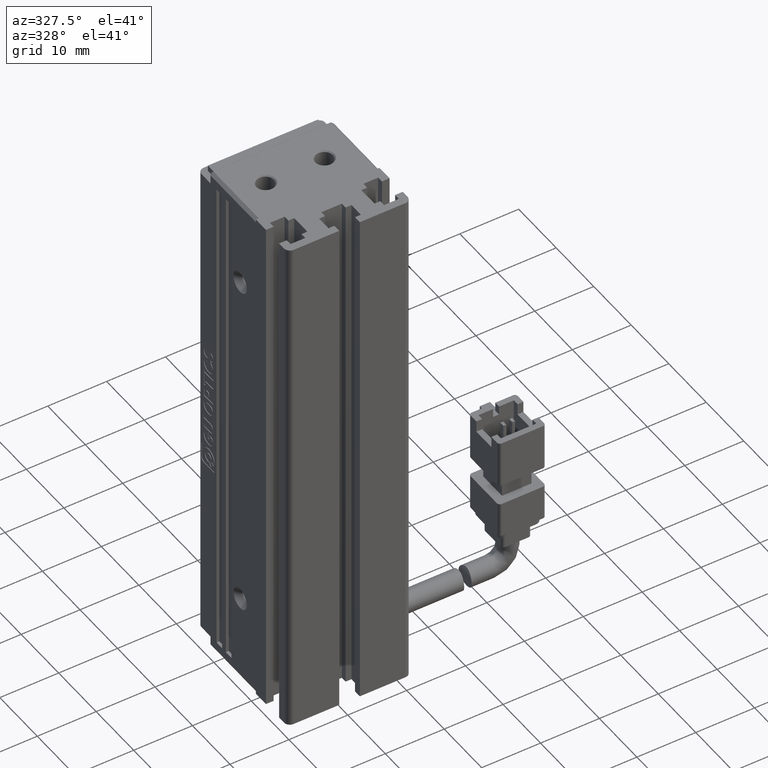
[diagram: clean part render]
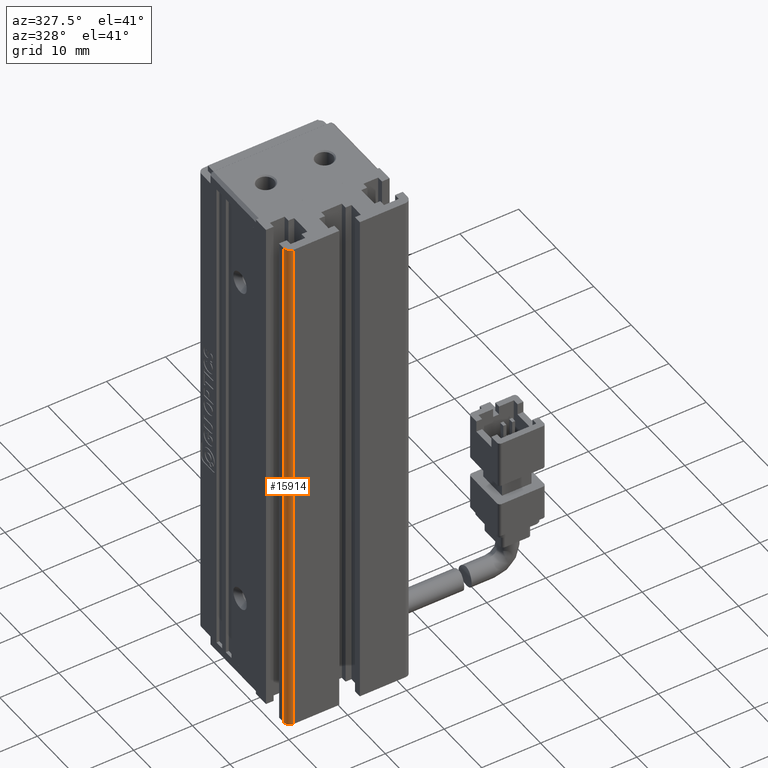
[diagram: same view with one face highlighted and labeled with its STEP entity id]
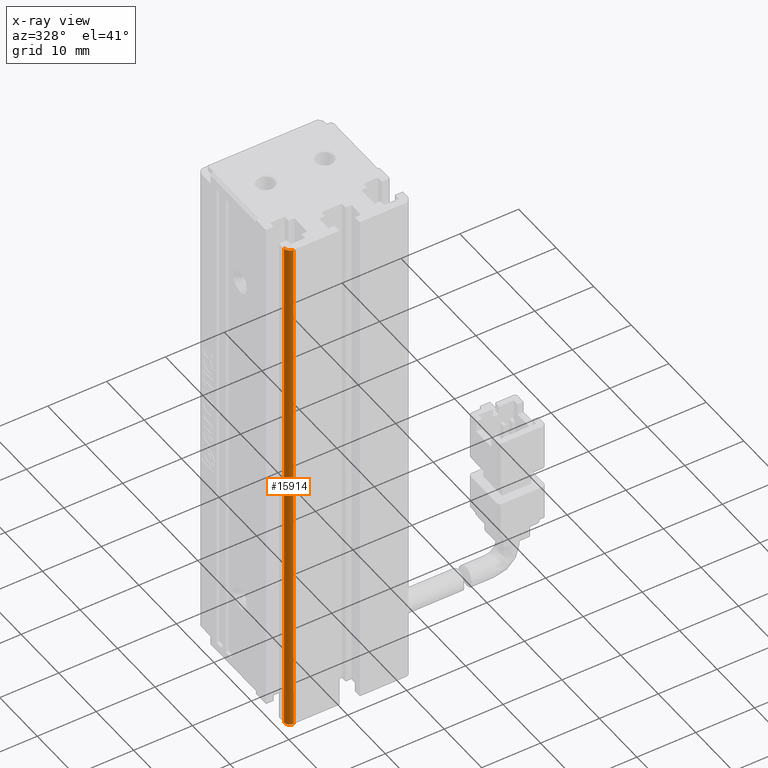
[diagram: x-ray of the same camera — body ghosted, the highlighted face saturated]
A machine part, auxiliary view. The second image highlights one B-rep face of the part: STEP entity #15914.
The next image is the same camera in x-ray: the body ghosted, the highlighted face saturated — about 0% of this face is hidden behind the body in this view.
In plain terms, the highlighted cylindrical surface (edge-blend (fillet) strip) has radius 1 mm, axis along (-0, -0, -1).
Its self-contained STEP definition (entity closure, byte-faithful):
#220 = ORIENTED_EDGE ( 'NONE', *, *, #5844, .T. ) ;
#1117 = DIRECTION ( 'NONE',  ( 0.0000000000000000000, 0.0000000000000000000, 1.000000000000000000 ) ) ;
#1557 = DIRECTION ( 'NONE',  ( 0.0000000000000000000, -0.0000000000000000000, -1.000000000000000000 ) ) ;
#2141 = CIRCLE ( 'NONE', #14010, 1.000000000000000900 ) ;
#3456 = DIRECTION ( 'NONE',  ( -1.000000000000000000, 0.0000000000000000000, 0.0000000000000000000 ) ) ;
#3853 = CARTESIAN_POINT ( 'NONE',  ( 31.42537974683542900, 10.99073232304837000, -70.00000000000000000 ) ) ;
#3880 = VERTEX_POINT ( 'NONE', #7943 ) ;
#5844 = EDGE_CURVE ( 'NONE', #3880, #18766, #30640, .T. ) ;
#6412 = ORIENTED_EDGE ( 'NONE', *, *, #25801, .T. ) ;
#6468 = CARTESIAN_POINT ( 'NONE',  ( 31.42537974683542900, 11.99073232304837000, -160.0000000000000000 ) ) ;
#6711 = CARTESIAN_POINT ( 'NONE',  ( 31.42537974683542900, 11.99073232304837000, -70.00000000000000000 ) ) ;
#7548 = VECTOR ( 'NONE', #25950, 1000.000000000000000 ) ;
#7785 = CARTESIAN_POINT ( 'NONE',  ( 30.42537974683542500, 11.99073232304837000, -70.00000000000000000 ) ) ;
#7943 = CARTESIAN_POINT ( 'NONE',  ( 31.42537974683542900, 10.99073232304837000, -70.00000000000000000 ) ) ;
#9511 = DIRECTION ( 'NONE',  ( -1.000000000000000000, 0.0000000000000000000, 0.0000000000000000000 ) ) ;
#10937 = VECTOR ( 'NONE', #1557, 1000.000000000000000 ) ;
#11437 = CARTESIAN_POINT ( 'NONE',  ( 30.42537974683542500, 11.99073232304837000, -70.00000000000000000 ) ) ;
#13356 = VERTEX_POINT ( 'NONE', #30799 ) ;
#13375 = AXIS2_PLACEMENT_3D ( 'NONE', #6711, #29284, #9511 ) ;
#14010 = AXIS2_PLACEMENT_3D ( 'NONE', #6468, #1117, #28701 ) ;
#14327 = AXIS2_PLACEMENT_3D ( 'NONE', #18321, #15917, #3456 ) ;
#14598 = EDGE_CURVE ( 'NONE', #18766, #13356, #16839, .T. ) ;
#15914 = ADVANCED_FACE ( 'NONE', ( #23263 ), #16652, .T. ) ;
#15917 = DIRECTION ( 'NONE',  ( -0.0000000000000000000, -0.0000000000000000000, -1.000000000000000000 ) ) ;
#16652 = CYLINDRICAL_SURFACE ( 'NONE', #13375, 1.000000000000000900 ) ;
#16839 = LINE ( 'NONE', #11437, #7548 ) ;
#18321 = CARTESIAN_POINT ( 'NONE',  ( 31.42537974683542900, 11.99073232304837000, -70.00000000000000000 ) ) ;
#18766 = VERTEX_POINT ( 'NONE', #7785 ) ;
#18947 = ORIENTED_EDGE ( 'NONE', *, *, #14598, .T. ) ;
#21313 = CARTESIAN_POINT ( 'NONE',  ( 31.42537974683542900, 10.99073232304837000, -160.0000000000000000 ) ) ;
#21325 = EDGE_CURVE ( 'NONE', #3880, #27375, #23780, .T. ) ;
#21617 = ORIENTED_EDGE ( 'NONE', *, *, #21325, .F. ) ;
#23263 = FACE_OUTER_BOUND ( 'NONE', #26505, .T. ) ;
#23780 = LINE ( 'NONE', #3853, #10937 ) ;
#25801 = EDGE_CURVE ( 'NONE', #13356, #27375, #2141, .T. ) ;
#25950 = DIRECTION ( 'NONE',  ( -0.0000000000000000000, -0.0000000000000000000, -1.000000000000000000 ) ) ;
#26505 = EDGE_LOOP ( 'NONE', ( #220, #18947, #6412, #21617 ) ) ;
#27375 = VERTEX_POINT ( 'NONE', #21313 ) ;
#28701 = DIRECTION ( 'NONE',  ( -1.000000000000000000, 0.0000000000000000000, 0.0000000000000000000 ) ) ;
#29284 = DIRECTION ( 'NONE',  ( -0.0000000000000000000, -0.0000000000000000000, -1.000000000000000000 ) ) ;
#30640 = CIRCLE ( 'NONE', #14327, 1.000000000000000900 ) ;
#30799 = CARTESIAN_POINT ( 'NONE',  ( 30.42537974683542500, 11.99073232304837000, -160.0000000000000000 ) ) ;